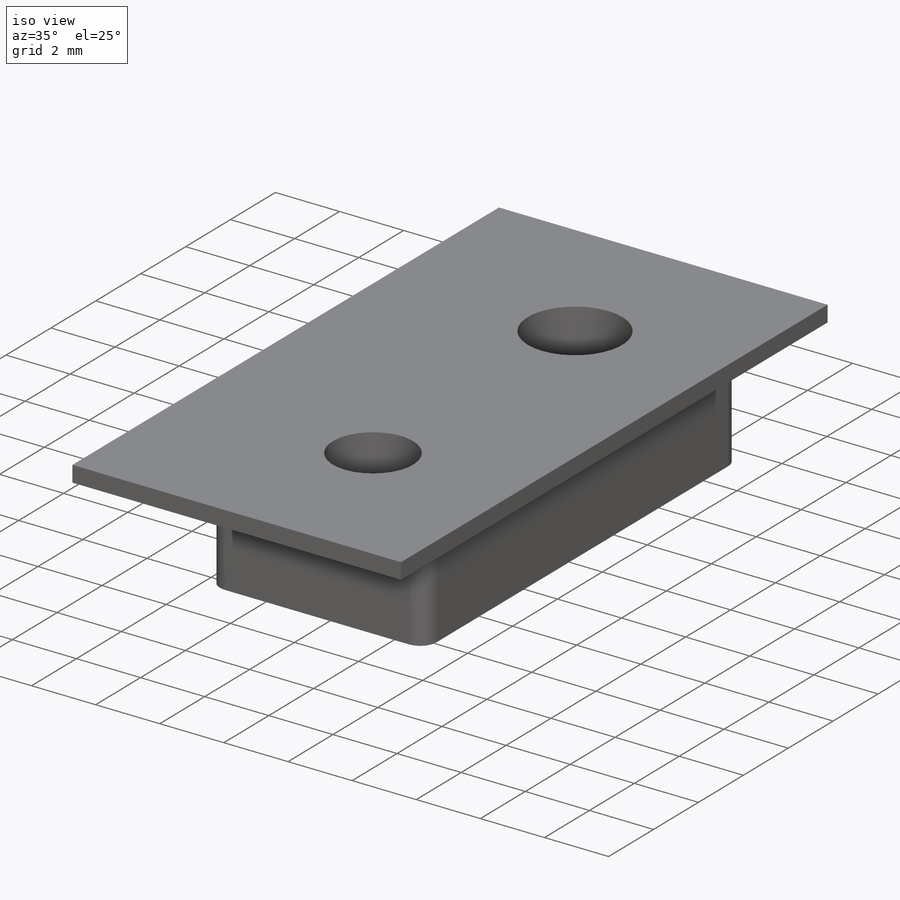
[diagram: iso view]
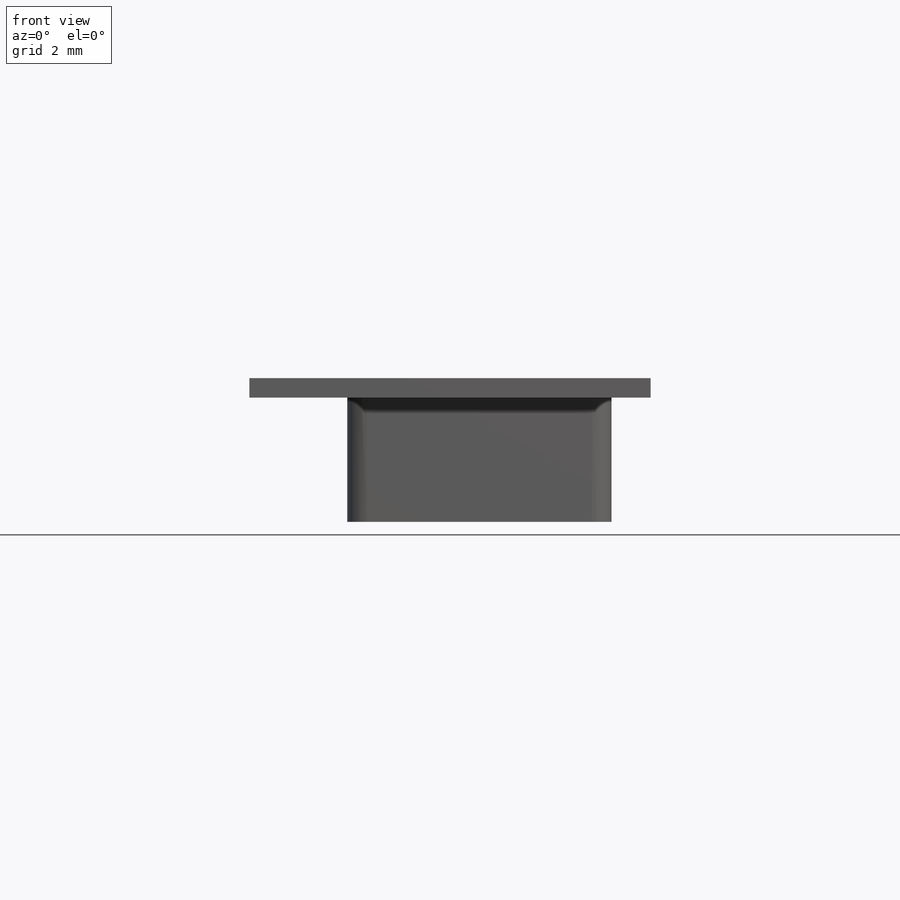
[diagram: front view]
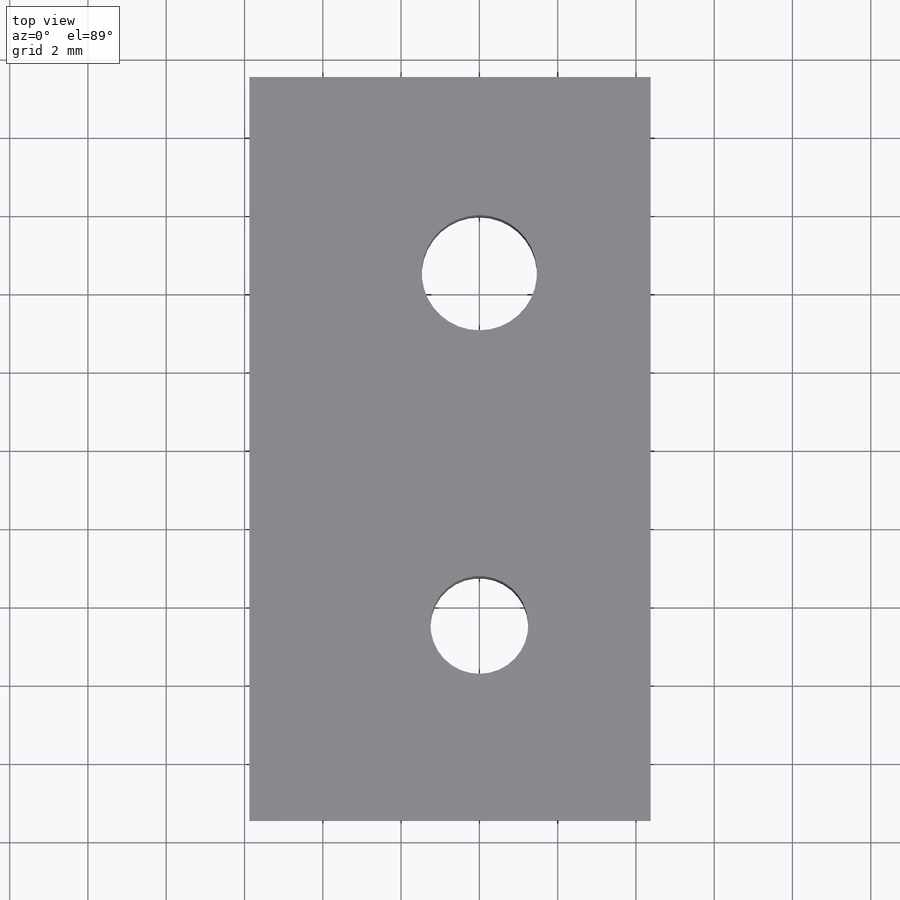
[diagram: top view]
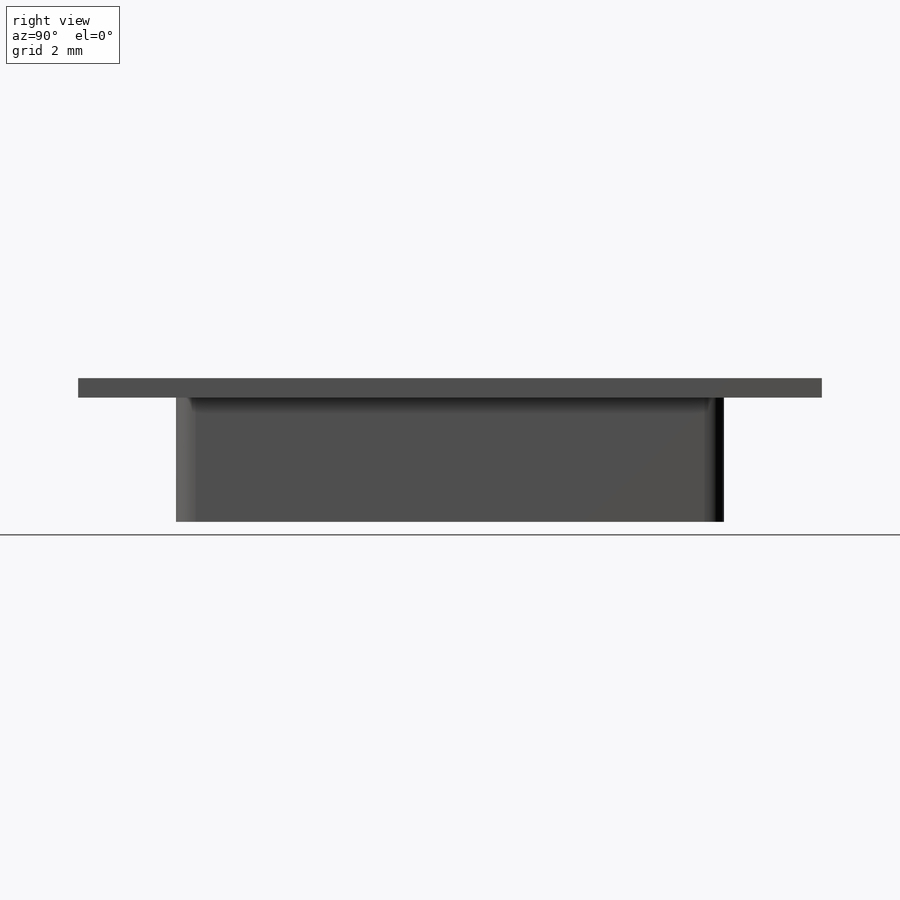
[diagram: right view]
SOLIDWORKS PART (.sldprt)
format: sldprt  version: not decoded by parser v0  size: 1,734,144 bytes
history: native  units: mm
features: sketch x12, cut_extrude x6, plane x4, extrude x4, material x1, hole x1, fillet x1 + 2 further entries (+13 scaffold rows collapsed)
feature tree (44):
  scaffold x13  (default folders/planes/origin — collapsed)
  material  "Material <not specified>"
  plane  "Plane1"
  plane  "Plane2"
  plane  "Plane3"
  "Axis2"
  "Axis3"
  sketch  "Sketch1"  dims[c1.D9=3.0mm c1.D10=4.0mm c1.D1=2.5mm c1.D2=~42.935967mm c2.D2=50.0deg c2.D3=~91.177867mm c3.D2=~100.269623mm c4.D2=~59.104769deg c4.D3=188.0mm c4.D4=~104.165277mm c4.D5=125.0mm c4.D6=~60.834723mm c5.D4=182.695mm c5.D6=~46.36475mm c5.D1=~5.35288mm c5.D7=14.0mm c6.D1=6.5mm c6.D8=110.0mm c7.D1=~193.33025mm c7.D11=~14.60465mm c7.D6=57.0mm c8.D1=15.0mm c8.D5=116.5mm c8.D7=1.0mm c8.D3=10.0mm c8.D6=~7.866729mm c8.D8=4.5mm c9.D7=0.0mm c9.D1=6.75mm c9.D2=114.0mm c9.D3=117.175mm c9.D4=0.25mm]
  extrude  "Extrude1"  Depth=14mm
  plane  "Plane4"  Offset=3.375mm
  sketch  "Sketch6"  dims[D1=2.5mm]
  extrude  "Extrude2"  Depth=0.5mm
  hole  "#4 Clearance Hole1"  Diameter=2.9464mm Depth=3.675mm
  sketch  "Sketch5"  dims[D1=4.5mm D2=3.375mm]
  sketch  "Sketch4"  dims[hole-wizard template sketch: 60 standard entries collapsed; hole parameters kept: c18.Thru Hole Depth=3.675mm]
  sketch  "Sketch3"  dims[D2=2.5mm D1=4.5mm]
  cut_extrude  "Cut-Extrude1"  [1 undecoded]
  fillet  "Fillet1"  Radius=0.5mm
  sketch  "Sketch7"  dims[D1=0.0mm]
  extrude  "Boss-Extrude1"  Depth=1.825mm
  sketch  "Sketch8"  dims[D1=0.0mm]
  extrude  "Boss-Extrude2"  Depth=23.1mm
  sketch  "Sketch9"  dims[c1.D1=~6.041587mm c2.D1=7.5deg c2.D2=5.0mm]
  cut_extrude  "Cut-Extrude2"  [1 undecoded]
  sketch  "Sketch10"
  cut_extrude  "Cut-Extrude3"  [1 undecoded]
  sketch  "Sketch14"  dims[D1=1.5mm]
  cut_extrude  "Cut-Extrude5"  [1 undecoded]
  sketch  "Sketch15"  dims[D1=1.5mm]
  cut_extrude  "Cut-Extrude6"  [1 undecoded]
  sketch  "Sketch16"  dims[D1=0.0mm]
  cut_extrude  "Cut-Extrude7"  Depth=1.5mm
decode coverage: 18 of 24 modeling features carry decoded parameters; 2 rows unclassified (native names shown)
note: ~ marks probable driven/reference dimensions
note: 5 parameter values undecoded
summary: no parameter record found for 5 features
note: suppression state not decoded; provenance and decode notes live in map.json
